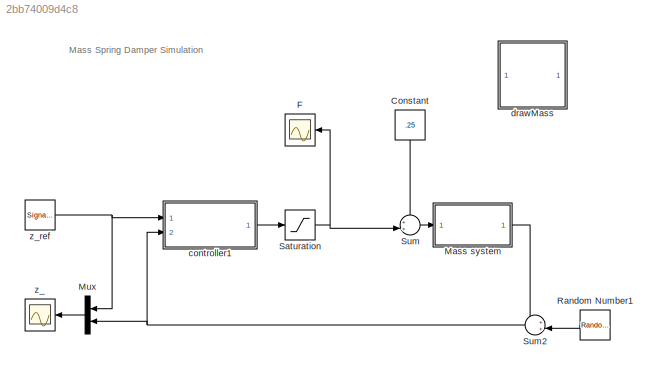
MODEL slx_2bb74009d4c8
KIND model
CONFIG AbsTol = auto
CONFIG EnableMultiTasking = on
CONFIG FixedStep = auto
CONFIG InitFcn = addpath ./..\nmass_param\nmassParamHW14
CONFIG MaxStep = auto
CONFIG MinStep = auto
CONFIG RelTol = 1e-3
CONFIG SampleTimeConstraint = Unconstrained
CONFIG Solver = ode45
CONFIG SolverName = ode45
CONFIG StartTime = 0.0
CONFIG StopTime = 100
BLOCK [Constant] Constant
  Value = .25
BLOCK [Scope] F
  NumInputPorts = 1
  Ports = [1]
  ScopeSpecificationString = Simulink.scopes.TimeScopeBlockCfg('CurrentConfiguration', extmgr.ConfigurationSet(extmgr.Configuration('Core','General UI',true),extmgr.Configuration('Core','Source UI',true),extmgr.Configuration('Sources','WiredSimulink',true,'DataLoggingSaveFormat','StructureWithTime','DataLoggingDecimation','1','DataLoggingDecimateData',true),extmgr.Configuration('Visuals','Time Domain',true,'SerializedDisplays...<+1659ch>
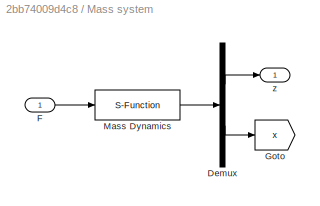
BLOCK [SubSystem] Mass system
  Ports = [1, 1]
  RequestExecContextInheritance = off
  Variant = off
BLOCK [Demux] Mass system/Demux
  DisplayOption = bar
  Outputs = [1;2]
  Ports = [1, 2]
BLOCK [Inport] Mass system/F
  IconDisplay = Port number
BLOCK [Goto] Mass system/Goto
  GotoTag = x
  TagVisibility = global
BLOCK [S-Function] Mass system/Mass Dynamics
  EnableBusSupport = off
  FunctionName = mass_dynamics
  Parameters = P
  Ports = [1, 1]
  SFcnIsStateOwnerBlock = off
  SFunctionDeploymentMode = off
BLOCK [Outport] Mass system/z
  IconDisplay = Port number
BLOCK [Mux] Mux
  DisplayOption = bar
  Inputs = 2
  Ports = [2, 1]
BLOCK [RandomNumber] Random Number1
  SampleTime = 0.1
  Variance = .0001^2
BLOCK [Saturate] Saturation
  InputPortMap = u0
  LowerLimit = -P.Fmax
  Ports = [1, 1]
  UpperLimit = P.Fmax
BLOCK [Sum] Sum
  IconShape = round
  InputSameDT = off
  Inputs = ++|
  OutDataTypeStr = Inherit: Inherit via internal rule
  Ports = [2, 1]
  SaturateOnIntegerOverflow = off
BLOCK [Sum] Sum2
  IconShape = round
  InputSameDT = off
  Inputs = ++|
  OutDataTypeStr = Inherit: Inherit via internal rule
  Ports = [2, 1]
  SaturateOnIntegerOverflow = off
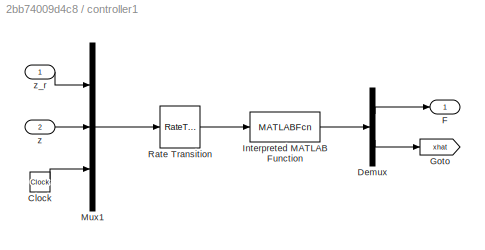
BLOCK [SubSystem] controller1
  Ports = [2, 1]
  RequestExecContextInheritance = off
  Variant = off
BLOCK [Clock] controller1/Clock
BLOCK [Demux] controller1/Demux
  DisplayOption = bar
  Outputs = [1;2]
  Ports = [1, 2]
BLOCK [Outport] controller1/F
  IconDisplay = Port number
BLOCK [Goto] controller1/Goto
  GotoTag = xhat
  TagVisibility = global
BLOCK [MATLABFcn] controller1/Interpreted MATLAB Function
  MATLABFcn = mass_ctrl(u,P)
  OutputDimensions = 1+2
  Ports = [1, 1]
BLOCK [Mux] controller1/Mux1
  DisplayOption = bar
  Inputs = 3
  Ports = [3, 1]
BLOCK [RateTransition] controller1/Rate Transition
  OutPortSampleTime = P.Ts
BLOCK [Inport] controller1/z
  IconDisplay = Port number
  Port = 2
BLOCK [Inport] controller1/z_r
  IconDisplay = Port number
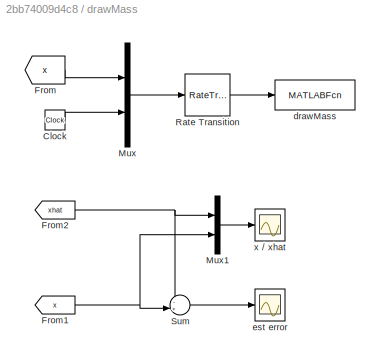
BLOCK [SubSystem] drawMass
  Ports = []
  RequestExecContextInheritance = off
  Variant = off
BLOCK [Clock] drawMass/Clock
BLOCK [From] drawMass/From
  GotoTag = x
  TagVisibility = global
BLOCK [From] drawMass/From1
  GotoTag = x
  TagVisibility = global
BLOCK [From] drawMass/From2
  GotoTag = xhat
  TagVisibility = global
BLOCK [Mux] drawMass/Mux
  DisplayOption = bar
  Inputs = 2
  Ports = [2, 1]
BLOCK [Mux] drawMass/Mux1
  DisplayOption = bar
  Inputs = 2
  Ports = [2, 1]
BLOCK [RateTransition] drawMass/Rate Transition
  OutPortSampleTime = P.t_plot
BLOCK [Sum] drawMass/Sum
  IconShape = round
  InputSameDT = off
  Inputs = -+|
  OutDataTypeStr = Inherit: Inherit via internal rule
  Ports = [2, 1]
  SaturateOnIntegerOverflow = off
BLOCK [MATLABFcn] drawMass/drawMass
  MATLABFcn = drawMSD(u, P)
  OutputDimensions = 0
  Ports = [1]
BLOCK [Scope] drawMass/est error
  NumInputPorts = 1
  Ports = [1]
  ScopeSpecificationString = Simulink.scopes.TimeScopeBlockCfg('CurrentConfiguration', extmgr.ConfigurationSet(extmgr.Configuration('Core','General UI',true),extmgr.Configuration('Core','Source UI',true),extmgr.Configuration('Sources','WiredSimulink',true,'DataLoggingVariableName','ScopeData1','DataLoggingSaveFormat','StructureWithTime','DataLoggingDecimation','1','DataLoggingDecimateData',true),extmgr.Configuration('Visuals'...<+1720ch>
BLOCK [Scope] drawMass/x // xhat
  NumInputPorts = 1
  Ports = [1]
  ScopeSpecificationString = Simulink.scopes.TimeScopeBlockCfg('CurrentConfiguration', extmgr.ConfigurationSet(extmgr.Configuration('Core','General UI',true),extmgr.Configuration('Core','Source UI',true),extmgr.Configuration('Sources','WiredSimulink',true,'DataLoggingVariableName','ScopeData2','DataLoggingSaveFormat','StructureWithTime','DataLoggingDecimation','1','DataLoggingDecimateData',true),extmgr.Configuration('Visuals'...<+1730ch>
BLOCK [Scope] z_
  NumInputPorts = 1
  Ports = [1]
  ScopeSpecificationString = Simulink.scopes.TimeScopeBlockCfg('CurrentConfiguration', extmgr.ConfigurationSet(extmgr.Configuration('Core','General UI',true),extmgr.Configuration('Core','Source UI',true),extmgr.Configuration('Sources','WiredSimulink',true,'DataLoggingVariableName','ScopeData1','DataLoggingSaveFormat','StructureWithTime','DataLoggingDecimation','1','DataLoggingDecimateData',true),extmgr.Configuration('Visuals'...<+1699ch>
BLOCK [SignalGenerator] z_ref
  Amplitude = .5
  Frequency = .02
  Ports = [0, 1]
  WaveForm = square
ANNOTATION (root): Mass Spring Damper Simulation
LINE Constant:1 -> Sum:1
LINE Mass system/Demux:1 -> Mass system/z:1
LINE Mass system/Demux:2 -> Mass system/Goto:1
LINE Mass system/F:1 -> Mass system/Mass Dynamics:1
LINE Mass system/Mass Dynamics:1 -> Mass system/Demux:1
LINE Mass system:1 -> Sum2:1
LINE Mux:1 -> z_:1
LINE Random Number1:1 -> Sum2:2
NET Saturation:1 -> F:1, Sum:2
NET Sum2:1 -> Mux:2, controller1:2
LINE Sum:1 -> Mass system:1
LINE controller1/Clock:1 -> controller1/Mux1:3
LINE controller1/Demux:1 -> controller1/F:1
LINE controller1/Demux:2 -> controller1/Goto:1
LINE controller1/Interpreted MATLAB Function:1 -> controller1/Demux:1
LINE controller1/Mux1:1 -> controller1/Rate Transition:1
LINE controller1/Rate Transition:1 -> controller1/Interpreted MATLAB Function:1
LINE controller1/z:1 -> controller1/Mux1:2
LINE controller1/z_r:1 -> controller1/Mux1:1
LINE controller1:1 -> Saturation:1
LINE drawMass/Clock:1 -> drawMass/Mux:2
NET drawMass/From1:1 -> drawMass/Mux1:2, drawMass/Sum:2
NET drawMass/From2:1 -> drawMass/Mux1:1, drawMass/Sum:1
LINE drawMass/From:1 -> drawMass/Mux:1
LINE drawMass/Mux1:1 -> drawMass/x // xhat:1
LINE drawMass/Mux:1 -> drawMass/Rate Transition:1
LINE drawMass/Rate Transition:1 -> drawMass/drawMass:1
LINE drawMass/Sum:1 -> drawMass/est error:1
NET z_ref:1 -> Mux:1, controller1:1
note: NET lines group one-source signal fan-out (src -> all destinations, sorted); 1:1 wires keep LINE
